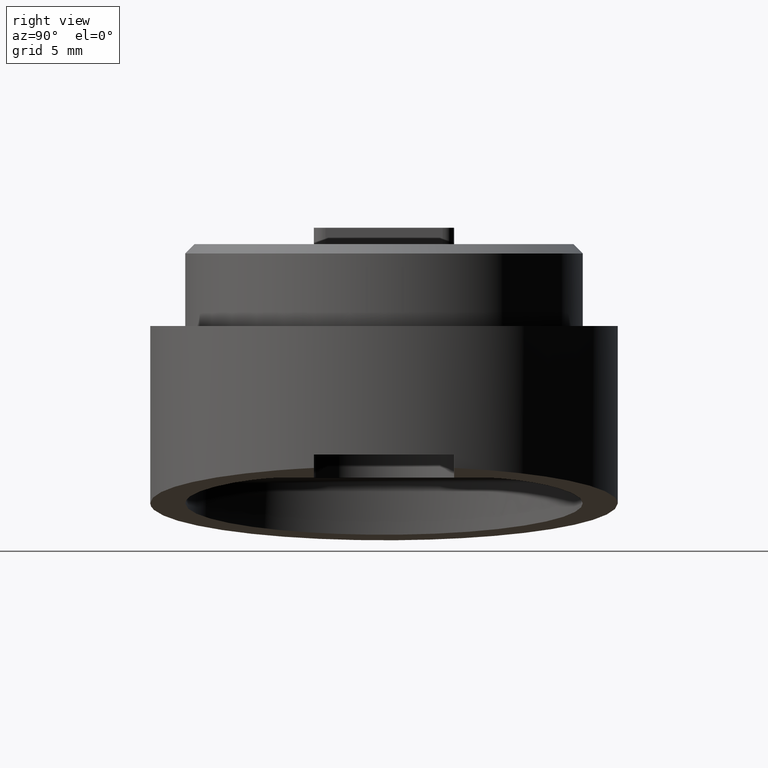
[diagram: clean part render]
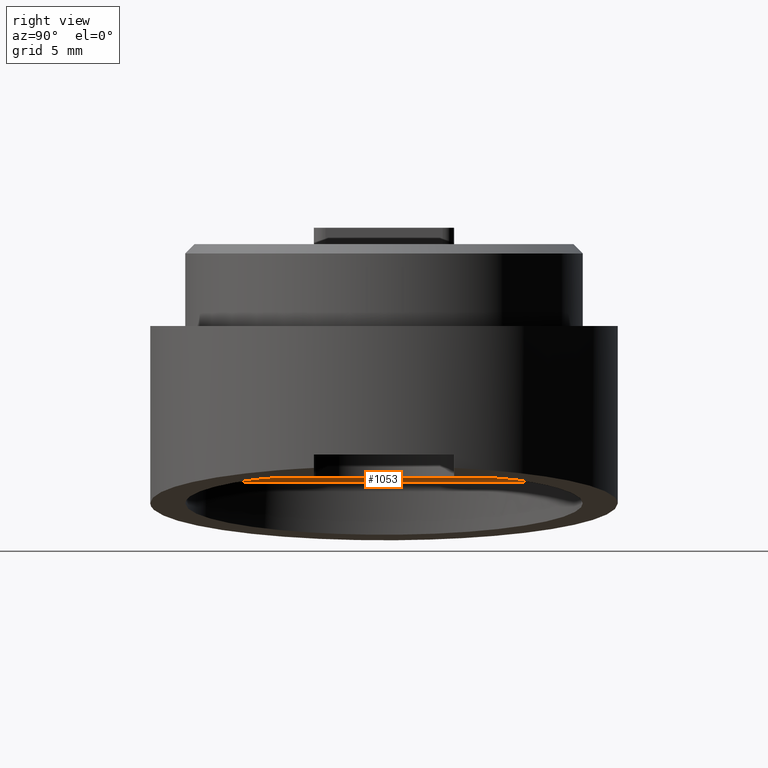
[diagram: same view with one face highlighted and labeled with its STEP entity id]
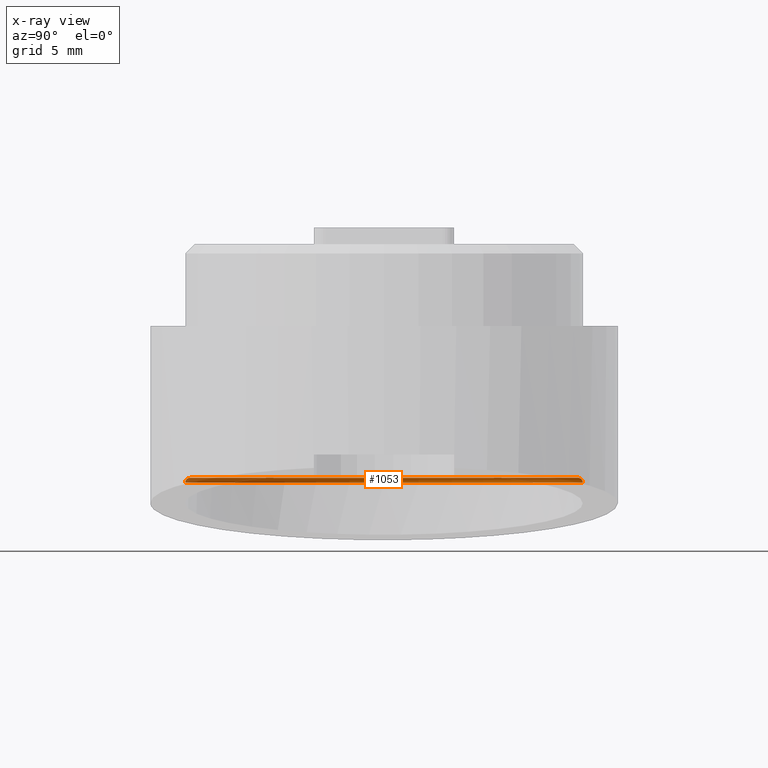
[diagram: x-ray of the same camera — body ghosted, the highlighted face saturated]
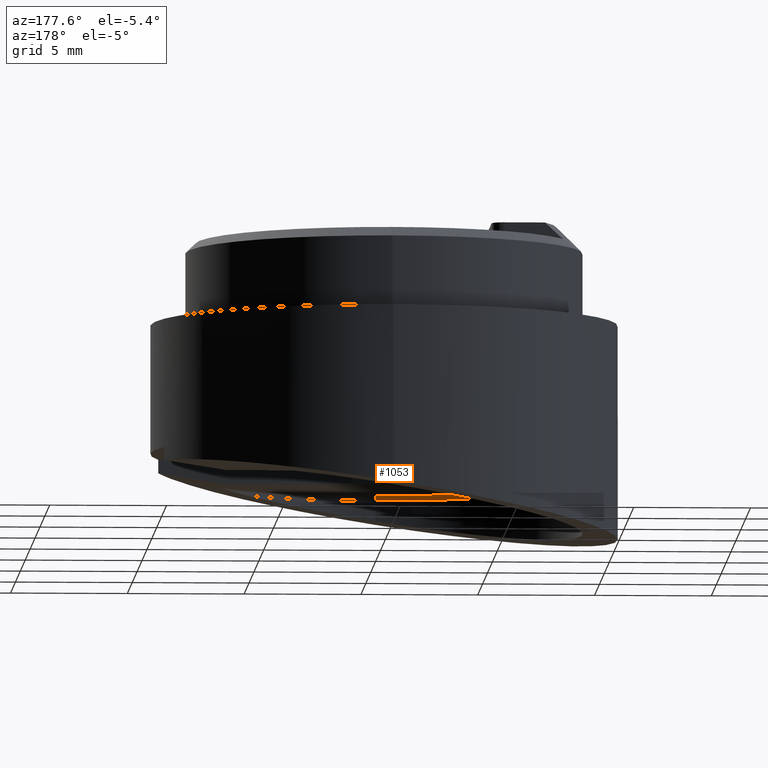
[diagram: same view with one face highlighted and labeled with its STEP entity id]
A machine part, right view. The second image highlights one B-rep face of the part: STEP entity #1053.
The next image is the same camera in x-ray: the body ghosted, the highlighted face saturated — about 33% of this face is hidden behind the body in this view.
A second angle (auxiliary view) of the same face is appended — the face is thin or edge-on in the first view.
In plain terms, the highlighted toroidal blend (fillet) surface has major radius 8.3 mm and minor (blend) radius 0.2 mm.
Its self-contained STEP definition (entity closure, byte-faithful):
#7 = CIRCLE ( 'NONE', #794, 8.500000000000030200 ) ;
#9 = FACE_OUTER_BOUND ( 'NONE', #703, .T. ) ;
#12 = AXIS2_PLACEMENT_3D ( 'NONE', #399, #946, #250 ) ;
#86 = CARTESIAN_POINT ( 'NONE',  ( 10.19999999999998700, 1.040949779275267900E-015, -8.500000000000028400 ) ) ;
#104 = VERTEX_POINT ( 'NONE', #1032 ) ;
#122 = ORIENTED_EDGE ( 'NONE', *, *, #186, .T. ) ;
#125 = VERTEX_POINT ( 'NONE', #86 ) ;
#149 = VERTEX_POINT ( 'NONE', #152 ) ;
#152 = CARTESIAN_POINT ( 'NONE',  ( 10.19999999999998700, -1.385754743235226400E-029, 8.500000000000030200 ) ) ;
#186 = EDGE_CURVE ( 'NONE', #125, #104, #268, .T. ) ;
#250 = DIRECTION ( 'NONE',  ( 0.0000000000000000000, -1.224646799147373400E-016, 1.000000000000000000 ) ) ;
#262 = AXIS2_PLACEMENT_3D ( 'NONE', #438, #607, #646 ) ;
#268 = CIRCLE ( 'NONE', #12, 0.1999999999999987900 ) ;
#269 = ORIENTED_EDGE ( 'NONE', *, *, #285, .F. ) ;
#285 = EDGE_CURVE ( 'NONE', #125, #149, #7, .T. ) ;
#290 = CIRCLE ( 'NONE', #262, 0.1999999999999987900 ) ;
#302 = AXIS2_PLACEMENT_3D ( 'NONE', #941, #326, #983 ) ;
#326 = DIRECTION ( 'NONE',  ( -1.000000000000000000, -1.774937036747276600E-030, 2.761013168273541300E-030 ) ) ;
#399 = CARTESIAN_POINT ( 'NONE',  ( 10.19999999999998700, 1.016456843292320400E-015, -8.300000000000029100 ) ) ;
#432 = ORIENTED_EDGE ( 'NONE', *, *, #522, .T. ) ;
#438 = CARTESIAN_POINT ( 'NONE',  ( 10.19999999999998700, -1.353148749276750300E-029, 8.300000000000029100 ) ) ;
#449 = AXIS2_PLACEMENT_3D ( 'NONE', #734, #745, #470 ) ;
#459 = DIRECTION ( 'NONE',  ( -1.000000000000000000, -1.774937036747276600E-030, 2.761013168273541300E-030 ) ) ;
#462 = CARTESIAN_POINT ( 'NONE',  ( 9.999999999999987600, -1.387201116623463900E-029, 8.300000000000000700 ) ) ;
#470 = DIRECTION ( 'NONE',  ( 0.0000000000000000000, -1.630299697923789900E-030, 1.000000000000000000 ) ) ;
#522 = EDGE_CURVE ( 'NONE', #104, #952, #975, .T. ) ;
#607 = DIRECTION ( 'NONE',  ( 1.774937036747276600E-030, -1.000000000000000000, -1.630299697923789500E-030 ) ) ;
#646 = DIRECTION ( 'NONE',  ( 1.000000000000000000, 1.774937036747283600E-030, 0.0000000000000000000 ) ) ;
#650 = CARTESIAN_POINT ( 'NONE',  ( 10.19999999999998700, 0.0000000000000000000, -3.944304526105059000E-028 ) ) ;
#703 = EDGE_LOOP ( 'NONE', ( #269, #122, #432, #746 ) ) ;
#734 = CARTESIAN_POINT ( 'NONE',  ( 9.999999999999987600, 0.0000000000000000000, 0.0000000000000000000 ) ) ;
#745 = DIRECTION ( 'NONE',  ( -1.000000000000000000, -1.774937036747276600E-030, 2.761013168273541300E-030 ) ) ;
#746 = ORIENTED_EDGE ( 'NONE', *, *, #860, .F. ) ;
#747 = TOROIDAL_SURFACE ( 'NONE', #302, 8.300000000000000700, 0.1999999999999996500 ) ;
#794 = AXIS2_PLACEMENT_3D ( 'NONE', #650, #459, #879 ) ;
#860 = EDGE_CURVE ( 'NONE', #149, #952, #290, .T. ) ;
#879 = DIRECTION ( 'NONE',  ( 0.0000000000000000000, -1.630299697923789500E-030, 1.000000000000000000 ) ) ;
#941 = CARTESIAN_POINT ( 'NONE',  ( 10.19999999999998700, 0.0000000000000000000, -3.944304526105059000E-028 ) ) ;
#946 = DIRECTION ( 'NONE',  ( -1.774937036747276200E-030, 1.000000000000000000, 1.224646799147369500E-016 ) ) ;
#952 = VERTEX_POINT ( 'NONE', #462 ) ;
#975 = CIRCLE ( 'NONE', #449, 8.300000000000029100 ) ;
#983 = DIRECTION ( 'NONE',  ( 2.761013168273541300E-030, -1.630299697923789500E-030, 1.000000000000000000 ) ) ;
#1032 = CARTESIAN_POINT ( 'NONE',  ( 9.999999999999987600, 1.028703311283793200E-015, -8.300000000000000700 ) ) ;
#1053 = ADVANCED_FACE ( 'NONE', ( #9 ), #747, .F. ) ;